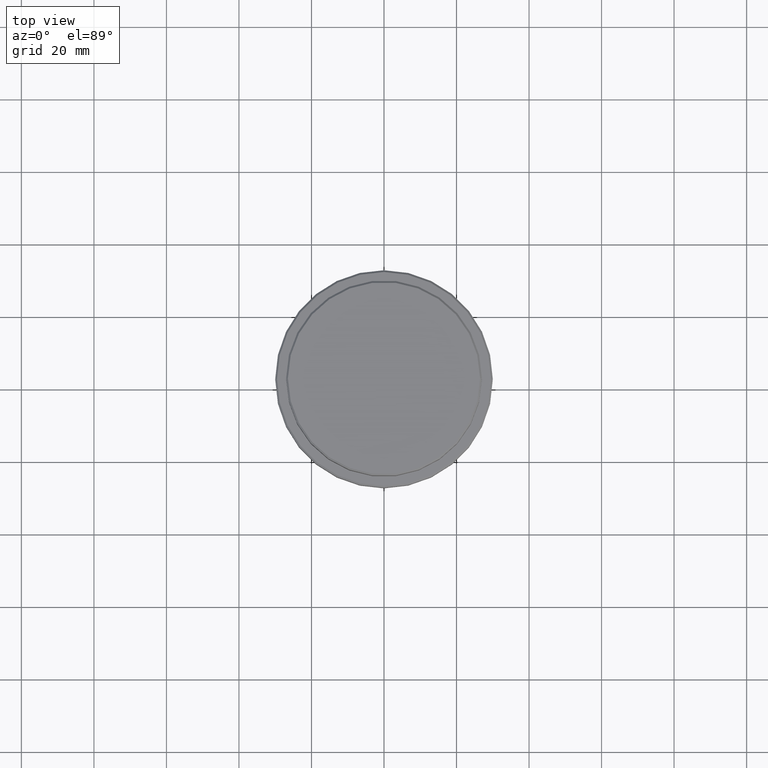
[diagram: clean part render]
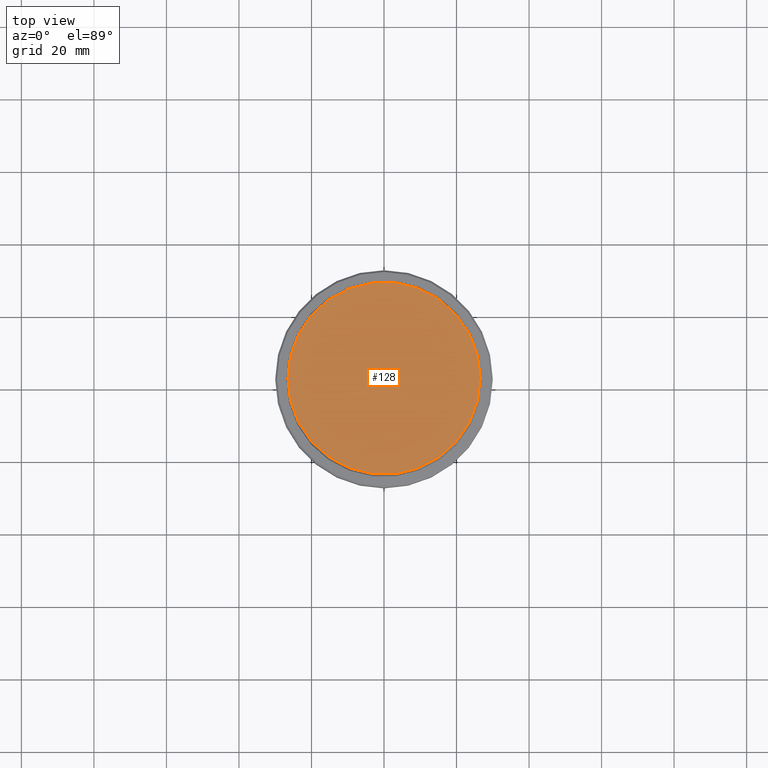
[diagram: same view with one face highlighted and labeled with its STEP entity id]
A machine part, top view. The second image highlights one B-rep face of the part: STEP entity #128.
In plain terms, the highlighted planar face has unit normal (0, -0, 1).
Its self-contained STEP definition (entity closure, byte-faithful):
#128 = ADVANCED_FACE ( 'NONE', ( #919 ), #1136, .T. ) ;
#155 = CARTESIAN_POINT ( 'NONE',  ( 0.000000000000000000, 0.000000000000000000, 0.000000000000000000 ) ) ;
#304 = EDGE_LOOP ( 'NONE', ( #462, #934 ) ) ;
#362 = DIRECTION ( 'NONE',  ( -0.000000000000000000, -0.000000000000000000, 1.000000000000000000 ) ) ;
#374 = DIRECTION ( 'NONE',  ( 0.000000000000000000, -0.000000000000000000, 1.000000000000000000 ) ) ;
#462 = ORIENTED_EDGE ( 'NONE', *, *, #1145, .T. ) ;
#512 = AXIS2_PLACEMENT_3D ( 'NONE', #155, #1028, #1132 ) ;
#568 = EDGE_CURVE ( 'NONE', #1307, #970, #947, .T. ) ;
#693 = CARTESIAN_POINT ( 'NONE',  ( 0.000000000000000000, 0.000000000000000000, 0.000000000000000000 ) ) ;
#747 = CARTESIAN_POINT ( 'NONE',  ( -26.50000000000002487, 0.000000000000000000, 0.000000000000000000 ) ) ;
#761 = CIRCLE ( 'NONE', #814, 26.50000000000002487 ) ;
#797 = DIRECTION ( 'NONE',  ( 1.000000000000000000, 0.000000000000000000, 0.000000000000000000 ) ) ;
#803 = CARTESIAN_POINT ( 'NONE',  ( 0.000000000000000000, 0.000000000000000000, 0.000000000000000000 ) ) ;
#814 = AXIS2_PLACEMENT_3D ( 'NONE', #693, #362, #1109 ) ;
#850 = AXIS2_PLACEMENT_3D ( 'NONE', #803, #374, #797 ) ;
#919 = FACE_OUTER_BOUND ( 'NONE', #304, .T. ) ;
#934 = ORIENTED_EDGE ( 'NONE', *, *, #568, .T. ) ;
#947 = CIRCLE ( 'NONE', #512, 26.50000000000002487 ) ;
#970 = VERTEX_POINT ( 'NONE', #747 ) ;
#1028 = DIRECTION ( 'NONE',  ( -0.000000000000000000, -0.000000000000000000, 1.000000000000000000 ) ) ;
#1109 = DIRECTION ( 'NONE',  ( 1.000000000000000000, 0.000000000000000000, 0.000000000000000000 ) ) ;
#1132 = DIRECTION ( 'NONE',  ( 1.000000000000000000, 0.000000000000000000, 0.000000000000000000 ) ) ;
#1136 = PLANE ( 'NONE',  #850 ) ;
#1145 = EDGE_CURVE ( 'NONE', #970, #1307, #761, .T. ) ;
#1190 = CARTESIAN_POINT ( 'NONE',  ( 26.50000000000002487, 3.275930187719171130E-15, 0.000000000000000000 ) ) ;
#1307 = VERTEX_POINT ( 'NONE', #1190 ) ;